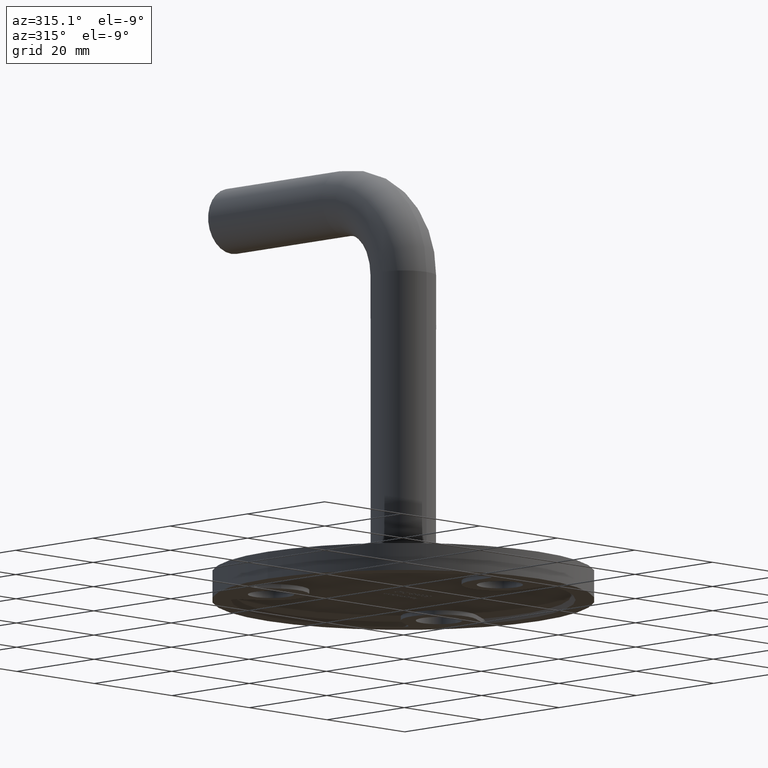
[diagram: clean part render]
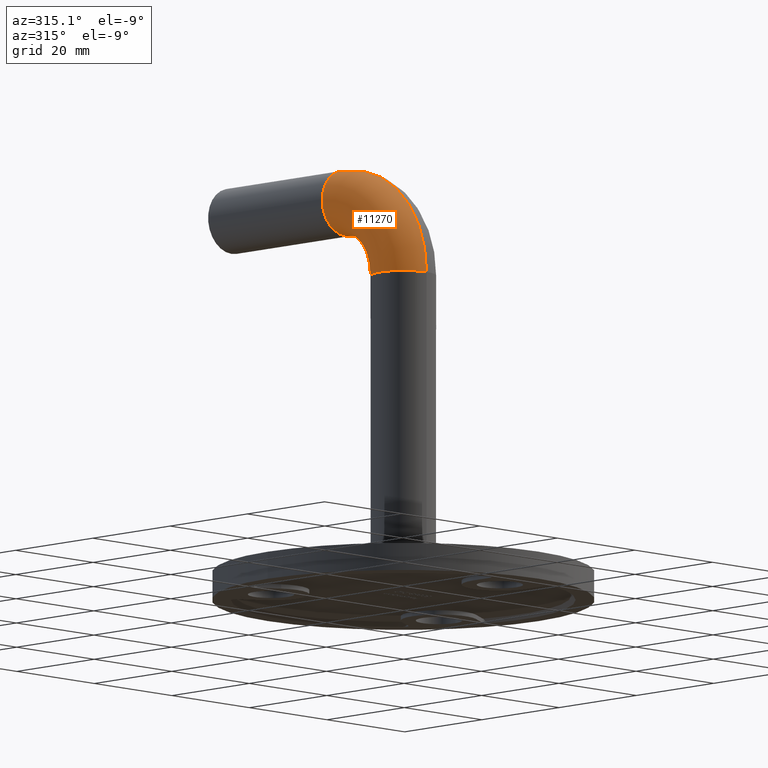
[diagram: same view with one face highlighted and labeled with its STEP entity id]
A machine part, auxiliary view. The second image highlights one B-rep face of the part: STEP entity #11270.
In plain terms, the highlighted toroidal blend (fillet) surface has major radius 15 mm and minor (blend) radius 6 mm.
Its self-contained STEP definition (entity closure, byte-faithful):
#91 = ORIENTED_EDGE ( 'NONE', *, *, #9834, .F. ) ;
#758 = CARTESIAN_POINT ( 'NONE',  ( 7.347880794884114806E-16, 14.99999999999999289, 68.99999999999998579 ) ) ;
#1254 = DIRECTION ( 'NONE',  ( 0.000000000000000000, 0.000000000000000000, 1.000000000000000000 ) ) ;
#2260 = EDGE_CURVE ( 'NONE', #11722, #13173, #2872, .T. ) ;
#2614 = DIRECTION ( 'NONE',  ( -1.000000000000000000, -0.000000000000000000, 0.000000000000000000 ) ) ;
#2717 = CARTESIAN_POINT ( 'NONE',  ( 0.000000000000000000, 14.99999999999999289, 60.00000000000000000 ) ) ;
#2872 = CIRCLE ( 'NONE', #9053, 6.000000000000000888 ) ;
#3078 = CARTESIAN_POINT ( 'NONE',  ( 0.000000000000000000, 14.99999999999999289, 60.00000000000000000 ) ) ;
#3125 = CARTESIAN_POINT ( 'NONE',  ( 0.000000000000000000, 5.999999999999993783, 60.00000000000000000 ) ) ;
#3197 = CARTESIAN_POINT ( 'NONE',  ( 0.000000000000000000, 14.99999999999999289, 75.00000000000000000 ) ) ;
#3972 = ORIENTED_EDGE ( 'NONE', *, *, #2260, .F. ) ;
#5437 = AXIS2_PLACEMENT_3D ( 'NONE', #3197, #5646, #14284 ) ;
#5474 = CIRCLE ( 'NONE', #6162, 21.00000000000000355 ) ;
#5528 = AXIS2_PLACEMENT_3D ( 'NONE', #12200, #8510, #1254 ) ;
#5646 = DIRECTION ( 'NONE',  ( 0.000000000000000000, -1.000000000000000000, -6.123233995736766036E-17 ) ) ;
#5946 = AXIS2_PLACEMENT_3D ( 'NONE', #3078, #14156, #6730 ) ;
#6055 = VERTEX_POINT ( 'NONE', #758 ) ;
#6162 = AXIS2_PLACEMENT_3D ( 'NONE', #2717, #2614, #7584 ) ;
#6730 = DIRECTION ( 'NONE',  ( 0.000000000000000000, 0.000000000000000000, 1.000000000000000000 ) ) ;
#7584 = DIRECTION ( 'NONE',  ( 0.000000000000000000, 0.000000000000000000, 1.000000000000000000 ) ) ;
#8310 = DIRECTION ( 'NONE',  ( 0.000000000000000000, 0.000000000000000000, -1.000000000000000000 ) ) ;
#8466 = ORIENTED_EDGE ( 'NONE', *, *, #11162, .T. ) ;
#8510 = DIRECTION ( 'NONE',  ( -1.000000000000000000, -0.000000000000000000, 0.000000000000000000 ) ) ;
#8942 = CIRCLE ( 'NONE', #5528, 8.999999999999994671 ) ;
#9053 = AXIS2_PLACEMENT_3D ( 'NONE', #10279, #8310, #13224 ) ;
#9069 = TOROIDAL_SURFACE ( 'NONE', #5946, 15.00000000000000000, 6.000000000000000888 ) ;
#9834 = EDGE_CURVE ( 'NONE', #13173, #6055, #8942, .T. ) ;
#10206 = ORIENTED_EDGE ( 'NONE', *, *, #10964, .T. ) ;
#10277 = CARTESIAN_POINT ( 'NONE',  ( 0.000000000000000000, 14.99999999999999289, 81.00000000000000000 ) ) ;
#10279 = CARTESIAN_POINT ( 'NONE',  ( 0.000000000000000000, -6.938893903907228378E-15, 60.00000000000000000 ) ) ;
#10964 = EDGE_CURVE ( 'NONE', #11667, #6055, #11954, .T. ) ;
#11155 = FACE_OUTER_BOUND ( 'NONE', #12679, .T. ) ;
#11162 = EDGE_CURVE ( 'NONE', #11722, #11667, #5474, .T. ) ;
#11270 = ADVANCED_FACE ( 'NONE', ( #11155 ), #9069, .T. ) ;
#11667 = VERTEX_POINT ( 'NONE', #10277 ) ;
#11722 = VERTEX_POINT ( 'NONE', #12630 ) ;
#11954 = CIRCLE ( 'NONE', #5437, 6.000000000000000888 ) ;
#12200 = CARTESIAN_POINT ( 'NONE',  ( 7.347880794884120722E-16, 14.99999999999999289, 60.00000000000000000 ) ) ;
#12630 = CARTESIAN_POINT ( 'NONE',  ( 7.347880794884123680E-16, -6.000000000000007994, 60.00000000000000000 ) ) ;
#12679 = EDGE_LOOP ( 'NONE', ( #3972, #8466, #10206, #91 ) ) ;
#13173 = VERTEX_POINT ( 'NONE', #3125 ) ;
#13224 = DIRECTION ( 'NONE',  ( -1.000000000000000000, 0.000000000000000000, 0.000000000000000000 ) ) ;
#14156 = DIRECTION ( 'NONE',  ( -1.000000000000000000, -0.000000000000000000, 0.000000000000000000 ) ) ;
#14284 = DIRECTION ( 'NONE',  ( -1.000000000000000000, 0.000000000000000000, 0.000000000000000000 ) ) ;